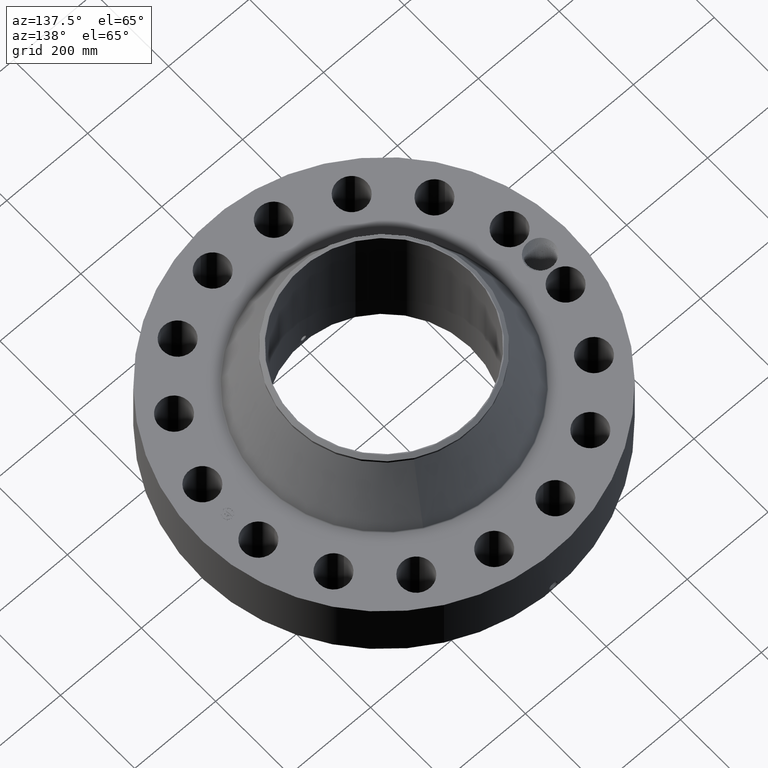
[diagram: clean part render]
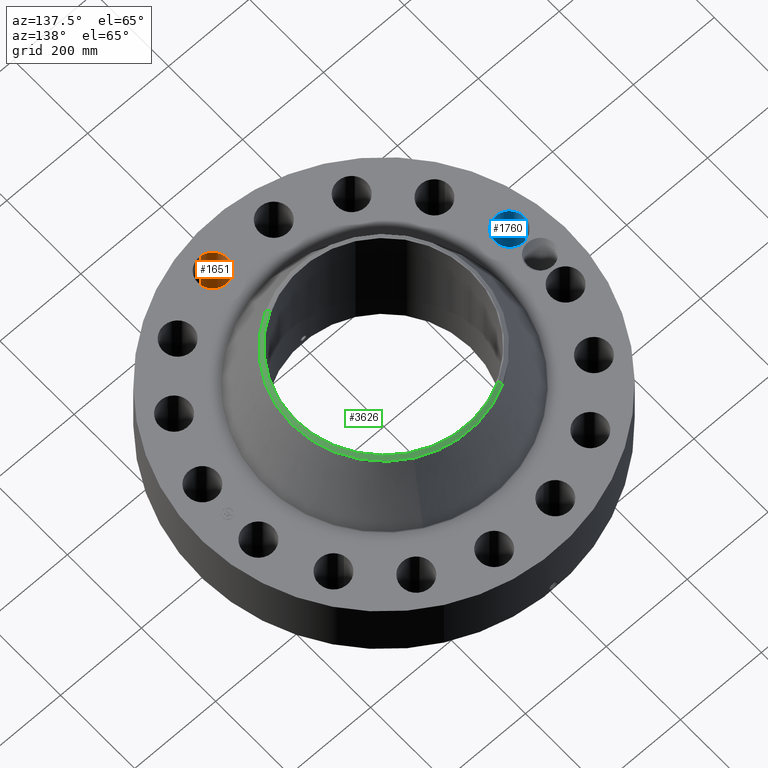
[diagram: same view with three faces highlighted in distinct colors, each labeled with its STEP entity id]
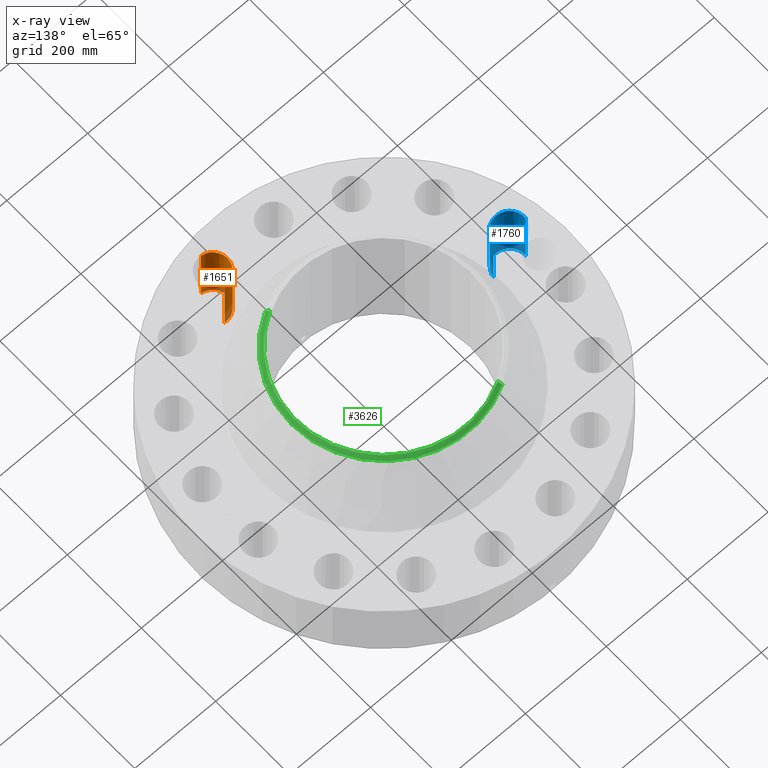
[diagram: x-ray of the same camera — body ghosted, the three highlighted faces saturated]
A machine part, auxiliary view with three faces highlighted in distinct colors.
The next image is the same camera in x-ray (body ghosted, the three faces saturated) — at least one of them is partly hidden behind the body in this view.
Their STEP definitions:

[orange] entity #1651 — the highlighted cylindrical surface (edge-blend (fillet) strip) has radius 36.576 mm, axis along (0, -0, -1).
#334=AXIS2_PLACEMENT_3D('Circle Axis2P3D',#332,#333,$) ;
#804=AXIS2_PLACEMENT_3D('Circle Axis2P3D',#802,#803,$) ;
#1626=AXIS2_PLACEMENT_3D('Cylinder Axis2P3D',#1623,#1624,#1625) ;
#327=CARTESIAN_POINT('Vertex',(3.1293444059,-13.5252572863,0.250000000001)) ;
#329=CARTESIAN_POINT('Vertex',(2.82091041562,-16.3886937661,0.250000000001)) ;
#332=CARTESIAN_POINT('Axis2P3D Location',(2.97512741076,-14.9569755262,0.250000000001)) ;
#802=CARTESIAN_POINT('Axis2P3D Location',(2.97512741076,-14.9569755262,6.63000000003)) ;
#806=CARTESIAN_POINT('Vertex',(2.82091041562,-16.3886937661,6.63000000003)) ;
#808=CARTESIAN_POINT('Vertex',(3.1293444059,-13.5252572863,6.63000000003)) ;
#1623=CARTESIAN_POINT('Axis2P3D Location',(2.97512741076,-14.9569755262,6.62606299215)) ;
#1628=CARTESIAN_POINT('Line Origine',(3.1293444059,-13.5252572863,3.44000000001)) ;
#1633=CARTESIAN_POINT('Line Origine',(2.82091041562,-16.3886937661,3.44000000001)) ;
#333=DIRECTION('Axis2P3D Direction',(0.,0.,-0.0393700787402)) ;
#803=DIRECTION('Axis2P3D Direction',(0.,0.,-0.0393700787402)) ;
#1624=DIRECTION('Axis2P3D Direction',(0.,-0.,-0.0393700787402)) ;
#1625=DIRECTION('Axis2P3D XDirection',(-0.00421634391778,-0.0391436526652,0.)) ;
#1629=DIRECTION('Vector Direction',(0.,0.,-0.0393700787402)) ;
#1634=DIRECTION('Vector Direction',(0.,0.,-0.0393700787402)) ;
#1630=VECTOR('Line Direction',#1629,0.0393700787402) ;
#1635=VECTOR('Line Direction',#1634,0.0393700787402) ;
#1646=ORIENTED_EDGE('',*,*,#1637,.F.) ;
#1647=ORIENTED_EDGE('',*,*,#336,.T.) ;
#1648=ORIENTED_EDGE('',*,*,#1632,.T.) ;
#1649=ORIENTED_EDGE('',*,*,#810,.F.) ;
#1651=ADVANCED_FACE('PartBody',(#1650),#1627,.F.) ;
#335=CIRCLE('generated circle',#334,1.44000000001) ;
#805=CIRCLE('generated circle',#804,1.44000000001) ;
#1627=CYLINDRICAL_SURFACE('generated cylinder',#1626,1.44000000001) ;
#336=EDGE_CURVE('',#330,#328,#335,.T.) ;
#810=EDGE_CURVE('',#807,#809,#805,.T.) ;
#1632=EDGE_CURVE('',#328,#809,#1631,.F.) ;
#1637=EDGE_CURVE('',#330,#807,#1636,.F.) ;
#1645=EDGE_LOOP('',(#1646,#1647,#1648,#1649)) ;
#1650=FACE_OUTER_BOUND('',#1645,.T.) ;
#1631=LINE('Line',#1628,#1630) ;
#1636=LINE('Line',#1633,#1635) ;
#328=VERTEX_POINT('',#327) ;
#330=VERTEX_POINT('',#329) ;
#807=VERTEX_POINT('',#806) ;
#809=VERTEX_POINT('',#808) ;

[blue] entity #1760 — the highlighted cylindrical surface (edge-blend (fillet) strip) has radius 36.576 mm, axis along (-0, 0, -1).
#397=AXIS2_PLACEMENT_3D('Circle Axis2P3D',#395,#396,$) ;
#885=AXIS2_PLACEMENT_3D('Circle Axis2P3D',#883,#884,$) ;
#1742=AXIS2_PLACEMENT_3D('Cylinder Axis2P3D',#1739,#1740,#1741) ;
#395=CARTESIAN_POINT('Axis2P3D Location',(-14.9569755262,-2.97512741076,0.250000000001)) ;
#399=CARTESIAN_POINT('Vertex',(-13.5252572863,-3.1293444059,0.250000000001)) ;
#401=CARTESIAN_POINT('Vertex',(-16.3886937661,-2.82091041562,0.250000000001)) ;
#878=CARTESIAN_POINT('Vertex',(-16.3886937661,-2.82091041562,6.63000000003)) ;
#880=CARTESIAN_POINT('Vertex',(-13.5252572863,-3.1293444059,6.63000000003)) ;
#883=CARTESIAN_POINT('Axis2P3D Location',(-14.9569755262,-2.97512741076,6.63000000003)) ;
#1739=CARTESIAN_POINT('Axis2P3D Location',(-14.9569755262,-2.97512741076,6.62606299215)) ;
#1744=CARTESIAN_POINT('Line Origine',(-13.5252572863,-3.1293444059,3.44000000001)) ;
#1749=CARTESIAN_POINT('Line Origine',(-16.3886937661,-2.82091041562,3.44000000001)) ;
#396=DIRECTION('Axis2P3D Direction',(0.,0.,-0.0393700787402)) ;
#884=DIRECTION('Axis2P3D Direction',(0.,0.,-0.0393700787402)) ;
#1740=DIRECTION('Axis2P3D Direction',(-0.,0.,-0.0393700787402)) ;
#1741=DIRECTION('Axis2P3D XDirection',(-0.0391436526652,0.00421634391778,0.)) ;
#1745=DIRECTION('Vector Direction',(0.,0.,-0.0393700787402)) ;
#1750=DIRECTION('Vector Direction',(0.,0.,-0.0393700787402)) ;
#1746=VECTOR('Line Direction',#1745,0.0393700787402) ;
#1751=VECTOR('Line Direction',#1750,0.0393700787402) ;
#1755=ORIENTED_EDGE('',*,*,#1748,.F.) ;
#1756=ORIENTED_EDGE('',*,*,#403,.T.) ;
#1757=ORIENTED_EDGE('',*,*,#1753,.T.) ;
#1758=ORIENTED_EDGE('',*,*,#887,.F.) ;
#1760=ADVANCED_FACE('PartBody',(#1759),#1743,.F.) ;
#398=CIRCLE('generated circle',#397,1.44000000001) ;
#886=CIRCLE('generated circle',#885,1.44000000001) ;
#1743=CYLINDRICAL_SURFACE('generated cylinder',#1742,1.44000000001) ;
#403=EDGE_CURVE('',#400,#402,#398,.T.) ;
#887=EDGE_CURVE('',#881,#879,#886,.T.) ;
#1748=EDGE_CURVE('',#400,#881,#1747,.F.) ;
#1753=EDGE_CURVE('',#402,#879,#1752,.F.) ;
#1754=EDGE_LOOP('',(#1755,#1756,#1757,#1758)) ;
#1759=FACE_OUTER_BOUND('',#1754,.T.) ;
#1747=LINE('Line',#1744,#1746) ;
#1752=LINE('Line',#1749,#1751) ;
#400=VERTEX_POINT('',#399) ;
#402=VERTEX_POINT('',#401) ;
#879=VERTEX_POINT('',#878) ;
#881=VERTEX_POINT('',#880) ;

[green] entity #3626 — the highlighted conical surface has half-angle 52.5 deg.
#2723=AXIS2_PLACEMENT_3D('Circle Axis2P3D',#2721,#2722,$) ;
#3571=AXIS2_PLACEMENT_3D('Cone Axis2P3D',#3568,#3569,#3570) ;
#3609=AXIS2_PLACEMENT_3D('Circle Axis2P3D',#3607,#3608,$) ;
#3616=AXIS2_PLACEMENT_3D('Circle Axis2P3D',#3614,#3615,$) ;
#2721=CARTESIAN_POINT('Axis2P3D Location',(0.,0.,13.1300000001)) ;
#2725=CARTESIAN_POINT('Vertex',(4.14259150396,-7.58296288406,13.1300000001)) ;
#2727=CARTESIAN_POINT('Vertex',(-4.14259150396,7.58296288406,13.1300000001)) ;
#3568=CARTESIAN_POINT('Axis2P3D Location',(0.,0.,13.1300000001)) ;
#3573=CARTESIAN_POINT('Line Origine',(4.22871067571,-7.74060297055,12.9921651136)) ;
#3577=CARTESIAN_POINT('Vertex',(4.31482984746,-7.89824305704,12.8543302272)) ;
#3580=CARTESIAN_POINT('Line Origine',(-4.22871067571,7.74060297055,12.9921651136)) ;
#3584=CARTESIAN_POINT('Vertex',(-4.31482984746,7.89824305704,12.8543302272)) ;
#3607=CARTESIAN_POINT('Axis2P3D Location',(0.,0.,12.8543302272)) ;
#3611=CARTESIAN_POINT('Vertex',(4.31482984746,7.89824305704,12.8543302272)) ;
#3614=CARTESIAN_POINT('Axis2P3D Location',(0.,0.,12.8543302272)) ;
#2722=DIRECTION('Axis2P3D Direction',(0.,0.,-0.0393700787402)) ;
#3569=DIRECTION('Axis2P3D Direction',(-0.,-0.,-0.0393700787402)) ;
#3570=DIRECTION('Axis2P3D XDirection',(-0.0188750212049,0.0345504945626,0.)) ;
#3574=DIRECTION('Vector Direction',(0.014974561121,-0.02741075027,-0.023966985394)) ;
#3581=DIRECTION('Vector Direction',(-0.014974561121,0.02741075027,-0.023966985394)) ;
#3608=DIRECTION('Axis2P3D Direction',(0.,0.,-0.0393700787402)) ;
#3615=DIRECTION('Axis2P3D Direction',(0.,0.,-0.0393700787402)) ;
#3575=VECTOR('Line Direction',#3574,0.0393700787402) ;
#3582=VECTOR('Line Direction',#3581,0.0393700787402) ;
#3620=ORIENTED_EDGE('',*,*,#3586,.F.) ;
#3621=ORIENTED_EDGE('',*,*,#2729,.F.) ;
#3622=ORIENTED_EDGE('',*,*,#3579,.T.) ;
#3623=ORIENTED_EDGE('',*,*,#3613,.T.) ;
#3624=ORIENTED_EDGE('',*,*,#3618,.F.) ;
#3626=ADVANCED_FACE('PartBody',(#3625),#3572,.T.) ;
#2724=CIRCLE('generated circle',#2723,8.64074015751) ;
#3610=CIRCLE('generated circle',#3609,9.00000000004) ;
#3617=CIRCLE('generated circle',#3616,9.00000000004) ;
#3572=CONICAL_SURFACE('Cone',#3571,8.64074015751,0.916297857297) ;
#2729=EDGE_CURVE('',#2726,#2728,#2724,.F.) ;
#3579=EDGE_CURVE('',#2726,#3578,#3576,.T.) ;
#3586=EDGE_CURVE('',#2728,#3585,#3583,.T.) ;
#3613=EDGE_CURVE('',#3578,#3612,#3610,.F.) ;
#3618=EDGE_CURVE('',#3585,#3612,#3617,.T.) ;
#3619=EDGE_LOOP('',(#3620,#3621,#3622,#3623,#3624)) ;
#3625=FACE_OUTER_BOUND('',#3619,.T.) ;
#3576=LINE('Line',#3573,#3575) ;
#3583=LINE('Line',#3580,#3582) ;
#2726=VERTEX_POINT('',#2725) ;
#2728=VERTEX_POINT('',#2727) ;
#3578=VERTEX_POINT('',#3577) ;
#3585=VERTEX_POINT('',#3584) ;
#3612=VERTEX_POINT('',#3611) ;